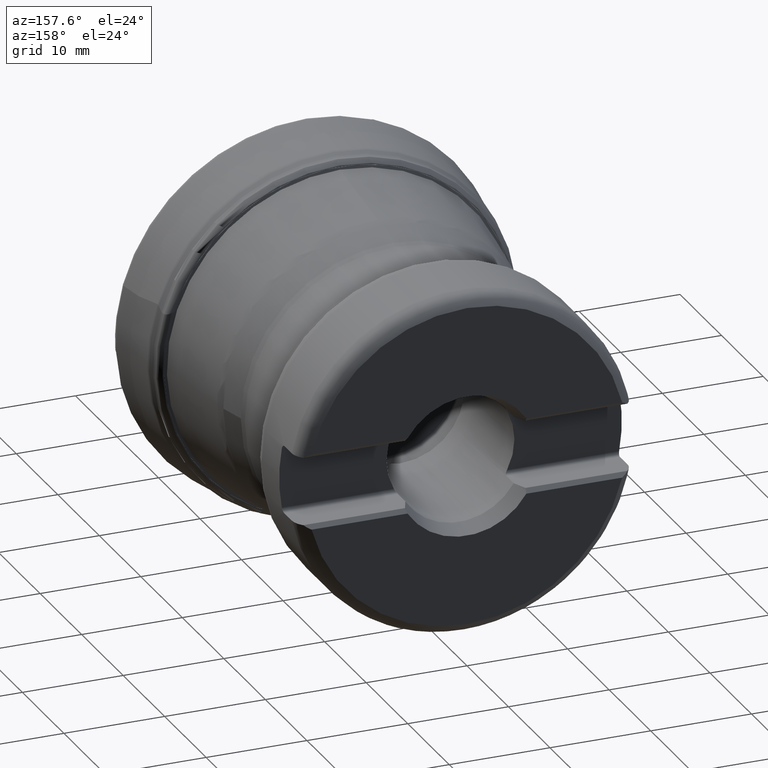
[diagram: clean part render]
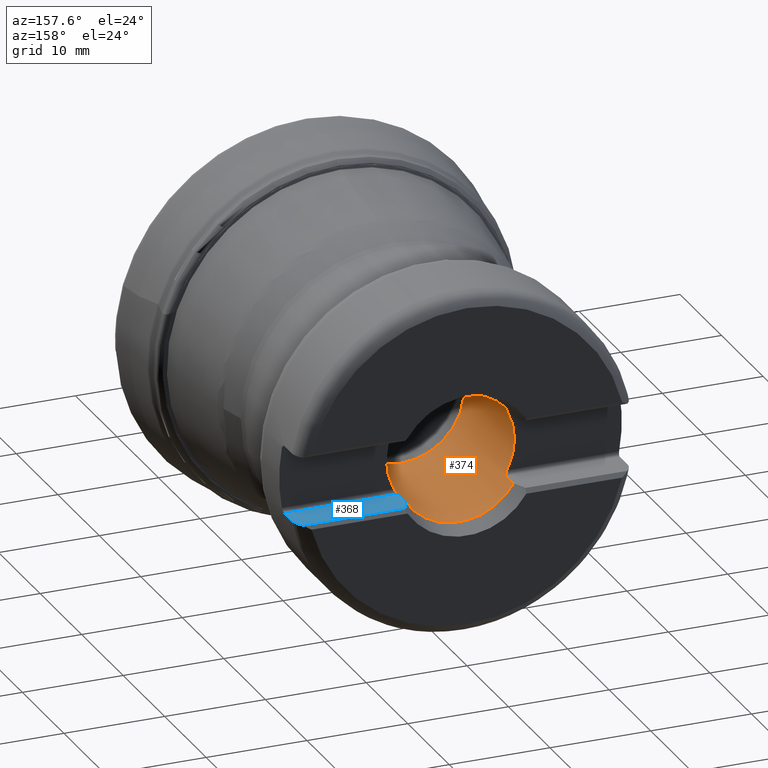
[diagram: same view with the hole feature highlighted: cylindrical wall and planar end face, labeled with their STEP entity ids]
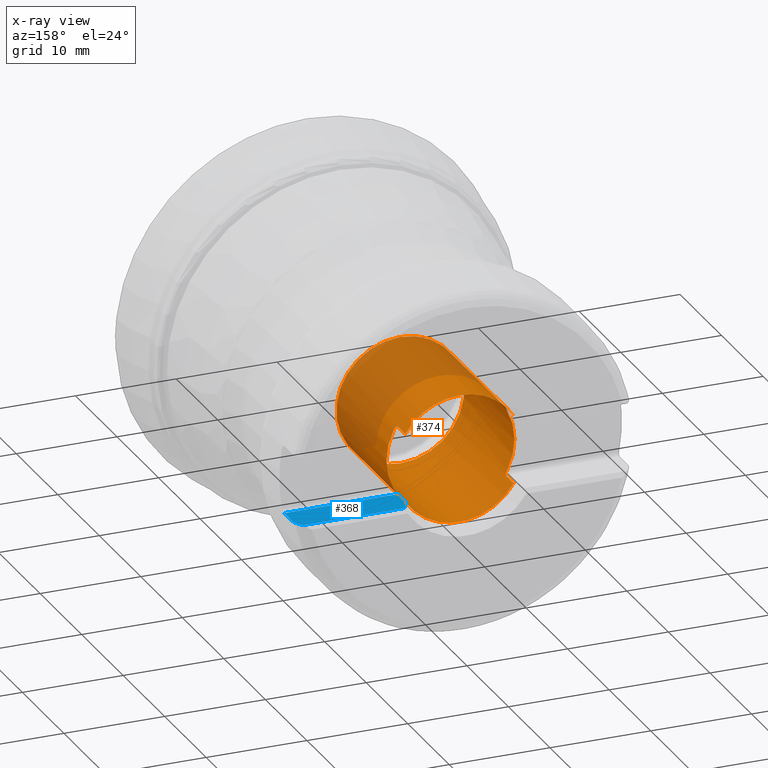
[diagram: x-ray of the same camera — body ghosted, the hole faces saturated]
A machine part, auxiliary view. The highlighted faces form one hole feature of diameter 12.7 mm: the cylindrical wall (entity #374, orange) and its adjacent planar end face (entity #368, blue) — they share a circular edge in the B-rep.
The next image is the same camera in x-ray (body ghosted, the hole faces saturated) — the bore reads through the body.
Wall:
#238=B_SPLINE_CURVE_WITH_KNOTS('',3,(#1796,#1797,#1798,#1799,#1800,#1801,
#1802,#1803,#1804,#1805,#1806,#1807,#1808,#1809,#1810,#1811),
 .UNSPECIFIED.,.F.,.F.,(4,3,3,3,3,4),(0.,0.178047644772917,0.355297025969387,
0.543775988375737,0.760045586060709,1.),.UNSPECIFIED.);
#239=B_SPLINE_CURVE_WITH_KNOTS('',3,(#1817,#1818,#1819,#1820,#1821,#1822,
#1823,#1824,#1825,#1826,#1827,#1828,#1829,#1830,#1831,#1832,#1833,#1834,
#1835),.UNSPECIFIED.,.F.,.F.,(4,3,3,3,3,3,4),(0.,0.0167835349170234,0.264671620918229,
0.521337664589933,0.762062541902673,0.96627984067495,1.),.UNSPECIFIED.);
#240=B_SPLINE_CURVE_WITH_KNOTS('',3,(#1845,#1846,#1847,#1848,#1849,#1850,
#1851,#1852,#1853,#1854,#1855,#1856,#1857,#1858,#1859,#1860),
 .UNSPECIFIED.,.F.,.F.,(4,3,3,3,3,4),(0.,0.255147205004627,0.511002146886986,
0.752894260915417,0.958697577769575,1.),.UNSPECIFIED.);
#241=B_SPLINE_CURVE_WITH_KNOTS('',3,(#1862,#1863,#1864,#1865,#1866,#1867,
#1868,#1869,#1870,#1871,#1872,#1873,#1874,#1875,#1876,#1877,#1878,#1879,
#1880),.UNSPECIFIED.,.F.,.F.,(4,3,3,3,3,3,4),(0.,0.14195866766798,0.311886690628907,
0.495290193357827,0.704326173038928,0.942172257732378,1.),.UNSPECIFIED.);
#301=LINE('',#1902,#330);
#303=LINE('',#1922,#332);
#305=LINE('',#1942,#334);
#307=LINE('',#1962,#336);
#330=VECTOR('',#1442,1.);
#332=VECTOR('',#1446,1.);
#334=VECTOR('',#1450,1.);
#336=VECTOR('',#1454,1.);
#353=CYLINDRICAL_SURFACE('',#1294,6.35);
#374=ADVANCED_FACE('',(#459,#460),#353,.F.);
#459=FACE_BOUND('',#593,.T.);
#460=FACE_BOUND('',#594,.T.);
#593=EDGE_LOOP('',(#796));
#594=EDGE_LOOP('',(#797,#798,#799,#800,#801,#802,#803,#804,#805,#806,#807,
#808));
#796=ORIENTED_EDGE('',*,*,#1117,.F.);
#797=ORIENTED_EDGE('',*,*,#1082,.T.);
#798=ORIENTED_EDGE('',*,*,#1080,.F.);
#799=ORIENTED_EDGE('',*,*,#1085,.T.);
#800=ORIENTED_EDGE('',*,*,#1104,.F.);
#801=ORIENTED_EDGE('',*,*,#1116,.F.);
#802=ORIENTED_EDGE('',*,*,#1108,.F.);
#803=ORIENTED_EDGE('',*,*,#1091,.T.);
#804=ORIENTED_EDGE('',*,*,#1087,.F.);
#805=ORIENTED_EDGE('',*,*,#1090,.T.);
#806=ORIENTED_EDGE('',*,*,#1096,.F.);
#807=ORIENTED_EDGE('',*,*,#1112,.F.);
#808=ORIENTED_EDGE('',*,*,#1100,.F.);
#978=VERTEX_POINT('',#1791);
#979=VERTEX_POINT('',#1793);
#980=VERTEX_POINT('',#1812);
#981=VERTEX_POINT('',#1816);
#982=VERTEX_POINT('',#1838);
#983=VERTEX_POINT('',#1840);
#984=VERTEX_POINT('',#1844);
#985=VERTEX_POINT('',#1881);
#988=VERTEX_POINT('',#1901);
#990=VERTEX_POINT('',#1909);
#994=VERTEX_POINT('',#1941);
#996=VERTEX_POINT('',#1949);
#1002=VERTEX_POINT('',#1979);
#1080=EDGE_CURVE('',#978,#979,#1192,.T.);
#1082=EDGE_CURVE('',#980,#979,#238,.T.);
#1085=EDGE_CURVE('',#978,#981,#239,.T.);
#1087=EDGE_CURVE('',#982,#983,#1193,.T.);
#1090=EDGE_CURVE('',#982,#984,#240,.T.);
#1091=EDGE_CURVE('',#985,#983,#241,.T.);
#1096=EDGE_CURVE('',#988,#984,#301,.T.);
#1100=EDGE_CURVE('',#980,#990,#303,.T.);
#1104=EDGE_CURVE('',#994,#981,#305,.T.);
#1108=EDGE_CURVE('',#985,#996,#307,.T.);
#1112=EDGE_CURVE('',#990,#988,#1195,.T.);
#1116=EDGE_CURVE('',#996,#994,#1197,.T.);
#1117=EDGE_CURVE('',#1002,#1002,#1198,.T.);
#1192=CIRCLE('',#1271,6.35);
#1193=CIRCLE('',#1275,6.35);
#1195=CIRCLE('',#1286,6.35);
#1197=CIRCLE('',#1291,6.35);
#1198=CIRCLE('',#1293,6.35);
#1271=AXIS2_PLACEMENT_3D('',#1792,#1418,#1419);
#1275=AXIS2_PLACEMENT_3D('',#1839,#1430,#1431);
#1286=AXIS2_PLACEMENT_3D('',#1969,#1463,#1464);
#1291=AXIS2_PLACEMENT_3D('',#1976,#1473,#1474);
#1293=AXIS2_PLACEMENT_3D('',#1978,#1477,#1478);
#1294=AXIS2_PLACEMENT_3D('',#1980,#1479,#1480);
#1418=DIRECTION('',(0.,-1.,0.));
#1419=DIRECTION('',(0.,0.,1.));
#1430=DIRECTION('',(0.,-1.,0.));
#1431=DIRECTION('',(0.,0.,1.));
#1442=DIRECTION('',(0.,-1.,0.));
#1446=DIRECTION('',(0.,1.,0.));
#1450=DIRECTION('',(0.,-1.,0.));
#1454=DIRECTION('',(0.,1.,0.));
#1463=DIRECTION('',(0.,-1.,0.));
#1464=DIRECTION('',(0.,0.,1.));
#1473=DIRECTION('',(0.,-1.,0.));
#1474=DIRECTION('',(0.,0.,1.));
#1477=DIRECTION('',(0.,1.,0.));
#1478=DIRECTION('',(0.,0.,1.));
#1479=DIRECTION('',(0.,1.,0.));
#1480=DIRECTION('',(0.,0.,1.));
#1791=CARTESIAN_POINT('',(-5.60997994648822,36.0426,2.975));
#1792=CARTESIAN_POINT('',(0.,36.0426,0.));
#1793=CARTESIAN_POINT('',(-5.60997994648822,36.0426,-2.975));
#1796=CARTESIAN_POINT('',(-5.37883584058856,36.4426,-3.375));
#1797=CARTESIAN_POINT('',(-5.37883584058856,36.4026357357322,-3.375));
#1798=CARTESIAN_POINT('',(-5.38274714587484,36.3621174300308,-3.3687861156399));
#1799=CARTESIAN_POINT('',(-5.3899716513156,36.3245619634968,-3.35718715564298));
#1800=CARTESIAN_POINT('',(-5.39717785730539,36.2871016238091,-3.34561757545643));
#1801=CARTESIAN_POINT('',(-5.40781262051026,36.2515795102168,-3.32846318832136));
#1802=CARTESIAN_POINT('',(-5.420619205718,36.2202023357169,-3.30747447860164));
#1803=CARTESIAN_POINT('',(-5.43424684993955,36.1868134999089,-3.28514013544225));
#1804=CARTESIAN_POINT('',(-5.4506170043543,36.1572811392,-3.25798674967799));
#1805=CARTESIAN_POINT('',(-5.46825211440473,36.1328688329921,-3.22811381665953));
#1806=CARTESIAN_POINT('',(-5.48846188556753,36.1048924199952,-3.19387954545067));
#1807=CARTESIAN_POINT('',(-5.51079214362293,36.082951238824,-3.15528232406976));
#1808=CARTESIAN_POINT('',(-5.53346706528523,36.0679011538877,-3.11500276683724));
#1809=CARTESIAN_POINT('',(-5.55858381009464,36.0512303513008,-3.07038557366179));
#1810=CARTESIAN_POINT('',(-5.58475258445283,36.0426,-3.02257142693155));
#1811=CARTESIAN_POINT('',(-5.60997994648822,36.0426,-2.975));
#1812=CARTESIAN_POINT('',(-5.37883584058856,36.4426,-3.375));
#1816=CARTESIAN_POINT('',(-5.37883584058855,36.4426,3.37500000000002));
#1817=CARTESIAN_POINT('',(-5.60997994648822,36.0426,2.975));
#1818=CARTESIAN_POINT('',(-5.60819242983341,36.0426,2.97837073364287));
#1819=CARTESIAN_POINT('',(-5.60640176291248,36.0426426107622,2.98174006624189));
#1820=CARTESIAN_POINT('',(-5.6046086197886,36.042727702999,2.98510673494121));
#1821=CARTESIAN_POINT('',(-5.57843268334509,36.0439698620616,3.03425267578985));
#1822=CARTESIAN_POINT('',(-5.55132954736477,36.0544453632258,3.08350139969736));
#1823=CARTESIAN_POINT('',(-5.52553283586623,36.0734564318175,3.1290552695285));
#1824=CARTESIAN_POINT('',(-5.49888490373541,36.0930948134614,3.17611229195654));
#1825=CARTESIAN_POINT('',(-5.47281234080277,36.1225148837278,3.22067196865605));
#1826=CARTESIAN_POINT('',(-5.45043056612106,36.160028805814,3.25811397036587));
#1827=CARTESIAN_POINT('',(-5.42947383109135,36.1951542297926,3.29317205311281));
#1828=CARTESIAN_POINT('',(-5.41108628715428,36.2387725462905,3.32313395775168));
#1829=CARTESIAN_POINT('',(-5.39847019056658,36.2870212885257,3.34350409025681));
#1830=CARTESIAN_POINT('',(-5.38774025137158,36.3280566489338,3.36082880568324));
#1831=CARTESIAN_POINT('',(-5.38090437676801,36.3738717549875,3.3717025018947));
#1832=CARTESIAN_POINT('',(-5.37925165430146,36.4195828582286,3.37433721487569));
#1833=CARTESIAN_POINT('',(-5.37897473310882,36.4272419622116,3.37477867306103));
#1834=CARTESIAN_POINT('',(-5.37883584058855,36.4349231878687,3.37500000000002));
#1835=CARTESIAN_POINT('',(-5.37883584058855,36.4426,3.37500000000002));
#1838=CARTESIAN_POINT('',(5.60997994648822,36.0426,-2.975));
#1839=CARTESIAN_POINT('',(0.,36.0426,0.));
#1840=CARTESIAN_POINT('',(5.60997994648822,36.0426,2.975));
#1844=CARTESIAN_POINT('',(5.37883584058856,36.4426,-3.375));
#1845=CARTESIAN_POINT('',(5.60997994648822,36.0426,-2.975));
#1846=CARTESIAN_POINT('',(5.58314279396001,36.0426,-3.02560702100979));
#1847=CARTESIAN_POINT('',(5.55521280895035,36.0523885960295,-3.07652997452059));
#1848=CARTESIAN_POINT('',(5.5286040168589,36.0712371100734,-3.1236257177792));
#1849=CARTESIAN_POINT('',(5.50195740950471,36.090112410809,-3.17078839146816));
#1850=CARTESIAN_POINT('',(5.47581510678833,36.1187074189299,-3.21557030170765));
#1851=CARTESIAN_POINT('',(5.45322833378128,36.1554114717764,-3.25342907401484));
#1852=CARTESIAN_POINT('',(5.43191398178151,36.1900478096873,-3.28915508051355));
#1853=CARTESIAN_POINT('',(5.41308607491115,36.2332800717963,-3.31988239380429));
#1854=CARTESIAN_POINT('',(5.39998542049907,36.2813462964944,-3.3410563387045));
#1855=CARTESIAN_POINT('',(5.38881333849202,36.3223366002766,-3.3591132266581));
#1856=CARTESIAN_POINT('',(5.38151252050484,36.3682855402408,-3.37073253736991));
#1857=CARTESIAN_POINT('',(5.37946519039739,36.4142879835295,-3.37399677908897));
#1858=CARTESIAN_POINT('',(5.37904628301393,36.423700614683,-3.3746646806416));
#1859=CARTESIAN_POINT('',(5.37883584058856,36.4331544083768,-3.375));
#1860=CARTESIAN_POINT('',(5.37883584058856,36.4426,-3.375));
#1862=CARTESIAN_POINT('',(5.37883584058855,36.4426,3.37500000000002));
#1863=CARTESIAN_POINT('',(5.37883584058855,36.4107179306452,3.37500000000002));
#1864=CARTESIAN_POINT('',(5.38129126531917,36.378541949434,3.37109504746087));
#1865=CARTESIAN_POINT('',(5.38595451322123,36.3478994115042,3.36362809797871));
#1866=CARTESIAN_POINT('',(5.39154668484897,36.3111528488483,3.35467372456411));
#1867=CARTESIAN_POINT('',(5.40043729451709,36.2757919940797,3.34039381214206));
#1868=CARTESIAN_POINT('',(5.41158243978137,36.244043437486,3.32223953041468));
#1869=CARTESIAN_POINT('',(5.42361472264604,36.2097677412593,3.30264019386329));
#1870=CARTESIAN_POINT('',(5.43851814766234,36.1788636098367,3.27811563632933));
#1871=CARTESIAN_POINT('',(5.45488154255209,36.1527491392013,3.25065645012273));
#1872=CARTESIAN_POINT('',(5.47351366733018,36.123013984689,3.21939013972975));
#1873=CARTESIAN_POINT('',(5.49445207169811,36.0987601697782,3.18361226385872));
#1874=CARTESIAN_POINT('',(5.51599301350587,36.0809191251357,3.14584187062134));
#1875=CARTESIAN_POINT('',(5.54045668930891,36.0606573586811,3.10294668695861));
#1876=CARTESIAN_POINT('',(5.56630485867532,36.0481551285377,3.05640028996434));
#1877=CARTESIAN_POINT('',(5.591528727647,36.0440937016331,3.00953592566999));
#1878=CARTESIAN_POINT('',(5.59770115047924,36.0430998475901,2.99806795172382));
#1879=CARTESIAN_POINT('',(5.60386061471098,36.0426,2.98653927010295));
#1880=CARTESIAN_POINT('',(5.60997994648822,36.0426,2.975));
#1881=CARTESIAN_POINT('',(5.37883584058855,36.4426,3.37500000000002));
#1901=CARTESIAN_POINT('',(5.37883584058856,38.205,-3.375));
#1902=CARTESIAN_POINT('',(5.37883584058856,40.205,-3.375));
#1909=CARTESIAN_POINT('',(-5.37883584058856,38.205,-3.375));
#1922=CARTESIAN_POINT('',(-5.37883584058856,40.205,-3.375));
#1941=CARTESIAN_POINT('',(-5.37883584058856,38.205,3.375));
#1942=CARTESIAN_POINT('',(-5.37883584058856,40.205,3.375));
#1949=CARTESIAN_POINT('',(5.37883584058856,38.205,3.375));
#1962=CARTESIAN_POINT('',(5.37883584058856,40.205,3.375));
#1969=CARTESIAN_POINT('',(0.,38.205,0.));
#1976=CARTESIAN_POINT('',(0.,38.205,0.));
#1978=CARTESIAN_POINT('',(0.,23.955,0.));
#1979=CARTESIAN_POINT('',(0.,23.955,6.35));
#1980=CARTESIAN_POINT('',(0.,40.205,0.));
End face:
#197=PLANE('',#1279);
#218=FACE_OUTER_BOUND('',#587,.T.);
#242=B_SPLINE_CURVE_WITH_KNOTS('',3,(#1884,#1885,#1886,#1887,#1888,#1889,
#1890,#1891,#1892,#1893),.UNSPECIFIED.,.F.,.F.,(4,3,3,4),(0.,0.426994848820018,
0.853773103595003,1.),.UNSPECIFIED.);
#243=B_SPLINE_CURVE_WITH_KNOTS('',3,(#1897,#1898,#1899,#1900),
 .UNSPECIFIED.,.F.,.F.,(4,4),(0.,1.),.UNSPECIFIED.);
#291=LINE('',#1737,#320);
#298=LINE('',#1843,#327);
#300=LINE('',#1895,#329);
#301=LINE('',#1902,#330);
#320=VECTOR('',#1394,1.);
#327=VECTOR('',#1435,1.);
#329=VECTOR('',#1441,1.);
#330=VECTOR('',#1442,1.);
#368=ADVANCED_FACE('',(#218),#197,.T.);
#587=EDGE_LOOP('',(#760,#761,#762,#763,#764,#765));
#760=ORIENTED_EDGE('',*,*,#1093,.T.);
#761=ORIENTED_EDGE('',*,*,#1094,.T.);
#762=ORIENTED_EDGE('',*,*,#1095,.F.);
#763=ORIENTED_EDGE('',*,*,#1096,.T.);
#764=ORIENTED_EDGE('',*,*,#1089,.T.);
#765=ORIENTED_EDGE('',*,*,#1069,.T.);
#968=VERTEX_POINT('',#1736);
#969=VERTEX_POINT('',#1738);
#984=VERTEX_POINT('',#1844);
#986=VERTEX_POINT('',#1894);
#987=VERTEX_POINT('',#1896);
#988=VERTEX_POINT('',#1901);
#1069=EDGE_CURVE('',#969,#968,#291,.T.);
#1089=EDGE_CURVE('',#984,#969,#298,.T.);
#1093=EDGE_CURVE('',#968,#986,#242,.T.);
#1094=EDGE_CURVE('',#986,#987,#300,.T.);
#1095=EDGE_CURVE('',#988,#987,#243,.T.);
#1096=EDGE_CURVE('',#988,#984,#301,.T.);
#1279=AXIS2_PLACEMENT_3D('',#1903,#1443,#1444);
#1394=DIRECTION('',(-1.16234042869424E-17,1.,0.));
#1435=DIRECTION('',(1.,0.,0.));
#1441=DIRECTION('',(-1.,-1.16234042869424E-17,-3.78063605387409E-33));
#1442=DIRECTION('',(0.,-1.,0.));
#1443=DIRECTION('',(0.,-3.25260651745651E-16,1.));
#1444=DIRECTION('',(0.,-1.,-3.25260651745651E-16));
#1736=CARTESIAN_POINT('',(16.6616138173948,38.205,-3.375));
#1737=CARTESIAN_POINT('',(16.6616138173948,40.205,-3.375));
#1738=CARTESIAN_POINT('',(16.6616138173948,36.4426,-3.375));
#1843=CARTESIAN_POINT('',(-24.5,36.4426,-3.375));
#1844=CARTESIAN_POINT('',(5.37883584058856,36.4426,-3.375));
#1884=CARTESIAN_POINT('',(16.6616138173948,38.205,-3.375));
#1885=CARTESIAN_POINT('',(16.6616138173948,38.4254296935192,-3.375));
#1886=CARTESIAN_POINT('',(16.6233373110928,38.6488971692904,-3.375));
#1887=CARTESIAN_POINT('',(16.5501785401111,38.8568323611494,-3.375));
#1888=CARTESIAN_POINT('',(16.4770404000368,39.064708914903,-3.375));
#1889=CARTESIAN_POINT('',(16.367089199065,39.2627488790964,-3.375));
#1890=CARTESIAN_POINT('',(16.2297709971047,39.435101890513,-3.375));
#1891=CARTESIAN_POINT('',(16.1824334709583,39.4945169212072,-3.375));
#1892=CARTESIAN_POINT('',(16.1316299221984,39.5513250719608,-3.375));
#1893=CARTESIAN_POINT('',(16.0778713009919,39.605,-3.375));
#1894=CARTESIAN_POINT('',(16.0778713009919,39.605,-3.375));
#1895=CARTESIAN_POINT('',(6.2214641585473,39.605,-3.375));
#1896=CARTESIAN_POINT('',(5.97184355579242,39.605,-3.375));
#1897=CARTESIAN_POINT('',(5.37883584058856,38.205,-3.375));
#1898=CARTESIAN_POINT('',(5.5789252410628,38.6706641234277,-3.375));
#1899=CARTESIAN_POINT('',(5.77636309328829,39.1374266409668,-3.375));
#1900=CARTESIAN_POINT('',(5.97184355579242,39.605,-3.375));
#1901=CARTESIAN_POINT('',(5.37883584058856,38.205,-3.375));
#1902=CARTESIAN_POINT('',(5.37883584058856,40.205,-3.375));
#1903=CARTESIAN_POINT('',(-24.5,44.0426,-3.375));